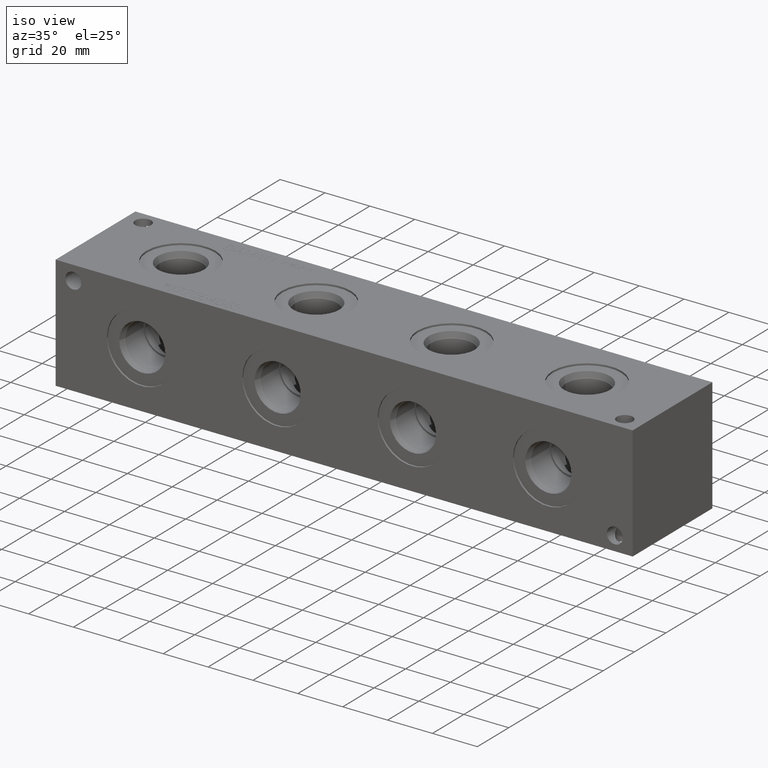
[diagram: clean part render]
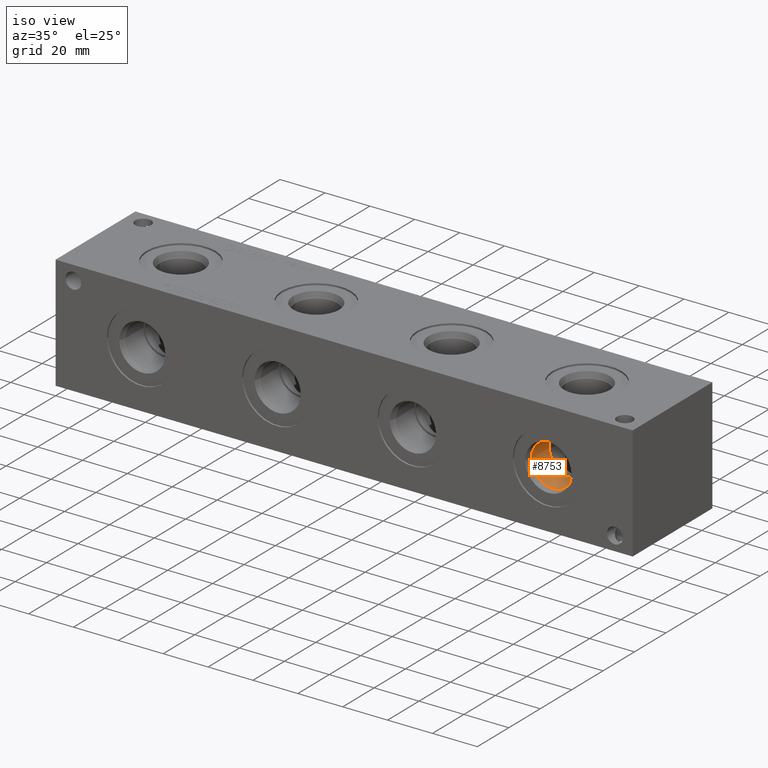
[diagram: same view with one face highlighted and labeled with its STEP entity id]
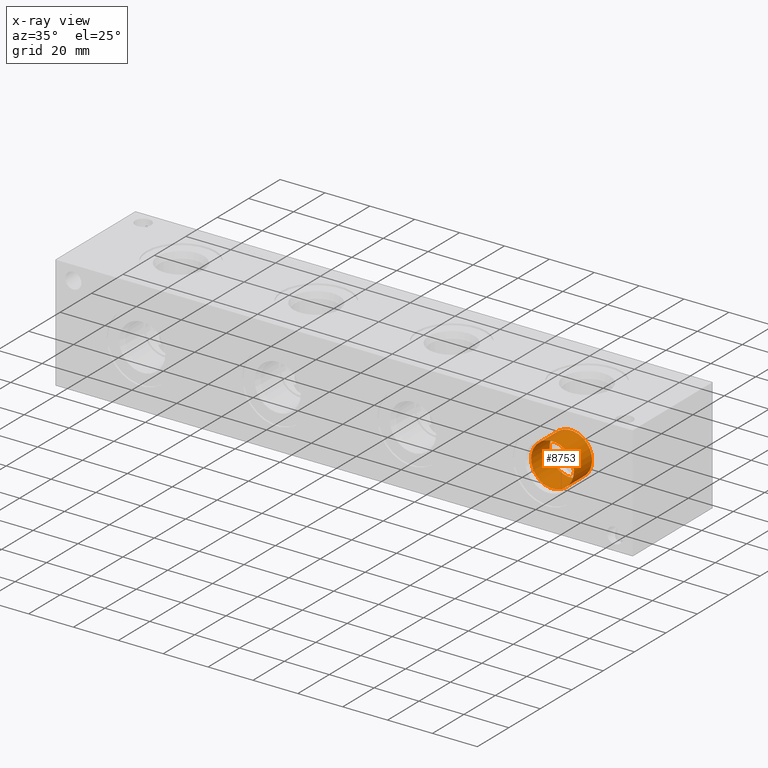
[diagram: x-ray of the same camera — body ghosted, the highlighted face saturated]
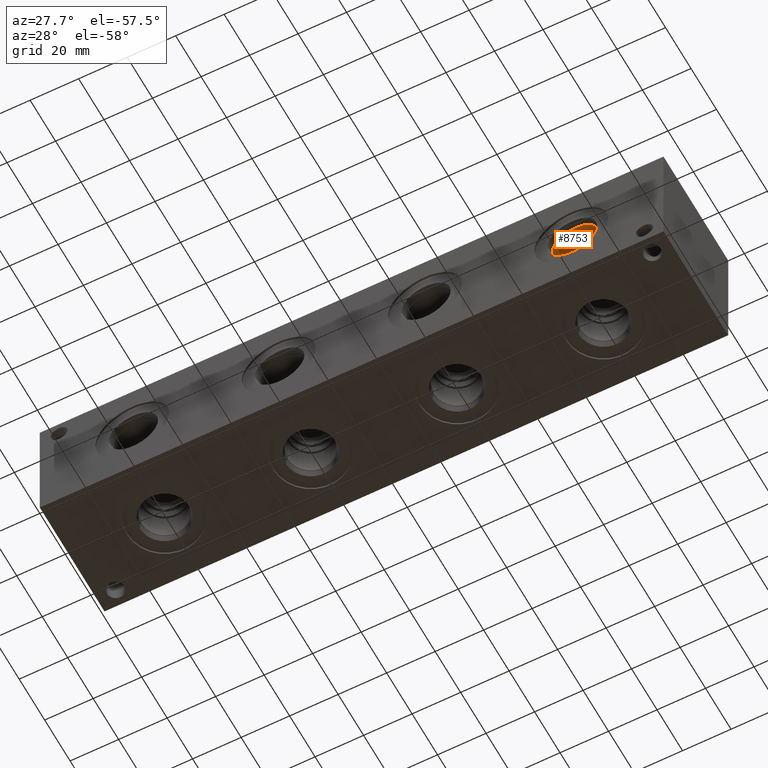
[diagram: same view with one face highlighted and labeled with its STEP entity id]
A machine part, iso view. The second image highlights one B-rep face of the part: STEP entity #8753.
The next image is the same camera in x-ray: the body ghosted, the highlighted face saturated — about 0% of this face is hidden behind the body in this view.
A second angle (auxiliary view) of the same face is appended — the face is thin or edge-on in the first view.
In plain terms, the highlighted cylindrical surface (bore or boss wall) has radius 9.525 mm, axis along (0, -1, 0).
Its self-contained STEP definition (entity closure, byte-faithful):
#161=CYLINDRICAL_SURFACE('',#9376,9.525);
#328=CIRCLE('',#9270,9.525);
#382=CIRCLE('',#9374,9.525);
#383=CIRCLE('',#9375,9.525);
#1158=FACE_OUTER_BOUND('',#1672,.T.);
#1672=EDGE_LOOP('',(#7751,#7752,#7753,#7754,#7755));
#2431=LINE('',#15240,#3161);
#3161=VECTOR('',#11305,9.525);
#4140=VERTEX_POINT('',#15038);
#4192=VERTEX_POINT('',#15235);
#4193=VERTEX_POINT('',#15236);
#5313=EDGE_CURVE('',#4140,#4140,#328,.T.);
#5403=EDGE_CURVE('',#4192,#4193,#382,.T.);
#5404=EDGE_CURVE('',#4193,#4192,#383,.T.);
#5405=EDGE_CURVE('',#4140,#4193,#2431,.T.);
#7751=ORIENTED_EDGE('',*,*,#5313,.T.);
#7752=ORIENTED_EDGE('',*,*,#5405,.T.);
#7753=ORIENTED_EDGE('',*,*,#5403,.F.);
#7754=ORIENTED_EDGE('',*,*,#5404,.F.);
#7755=ORIENTED_EDGE('',*,*,#5405,.F.);
#8753=ADVANCED_FACE('',(#1158),#161,.F.);
#9270=AXIS2_PLACEMENT_3D('',#15040,#11067,#11068);
#9374=AXIS2_PLACEMENT_3D('',#15237,#11299,#11300);
#9375=AXIS2_PLACEMENT_3D('',#15238,#11301,#11302);
#9376=AXIS2_PLACEMENT_3D('',#15239,#11303,#11304);
#11067=DIRECTION('center_axis',(0.,-1.,0.));
#11068=DIRECTION('ref_axis',(1.,0.,0.));
#11299=DIRECTION('center_axis',(0.,-1.,0.));
#11300=DIRECTION('ref_axis',(1.,0.,0.));
#11301=DIRECTION('center_axis',(0.,-1.,0.));
#11302=DIRECTION('ref_axis',(1.,0.,0.));
#11303=DIRECTION('center_axis',(0.,-1.,0.));
#11304=DIRECTION('ref_axis',(1.,0.,0.));
#11305=DIRECTION('',(0.,1.,0.));
#15038=CARTESIAN_POINT('',(209.55,3.4036,25.4));
#15040=CARTESIAN_POINT('Origin',(219.075,3.4036,25.4));
#15235=CARTESIAN_POINT('',(228.6,15.0622,25.4));
#15236=CARTESIAN_POINT('',(209.55,15.0622,25.4));
#15237=CARTESIAN_POINT('Origin',(219.075,15.0622,25.4));
#15238=CARTESIAN_POINT('Origin',(219.075,15.0622,25.4));
#15239=CARTESIAN_POINT('Origin',(219.075,7.5311,25.4));
#15240=CARTESIAN_POINT('',(209.55,7.5311,25.4));